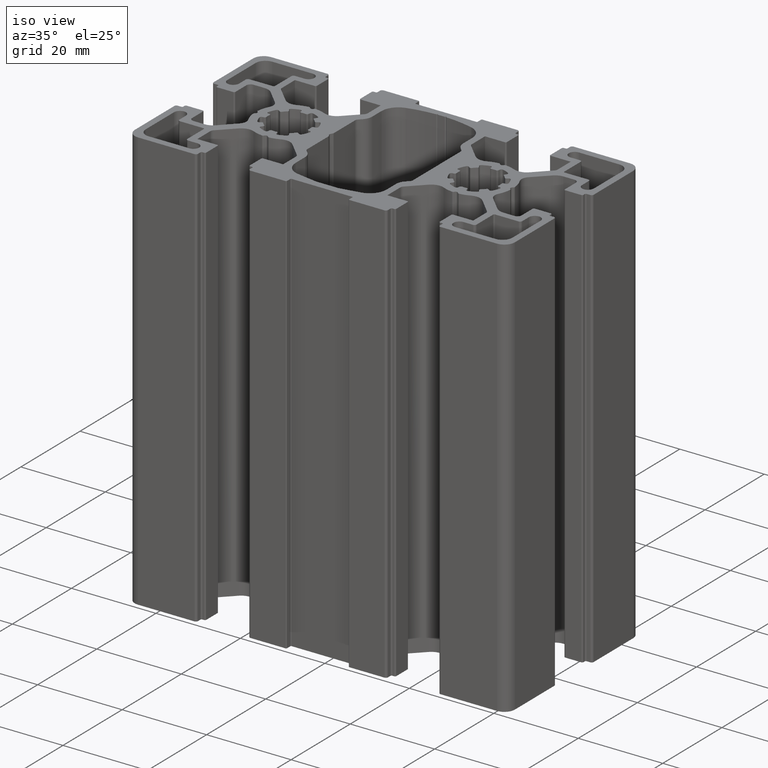
[diagram: clean part render]
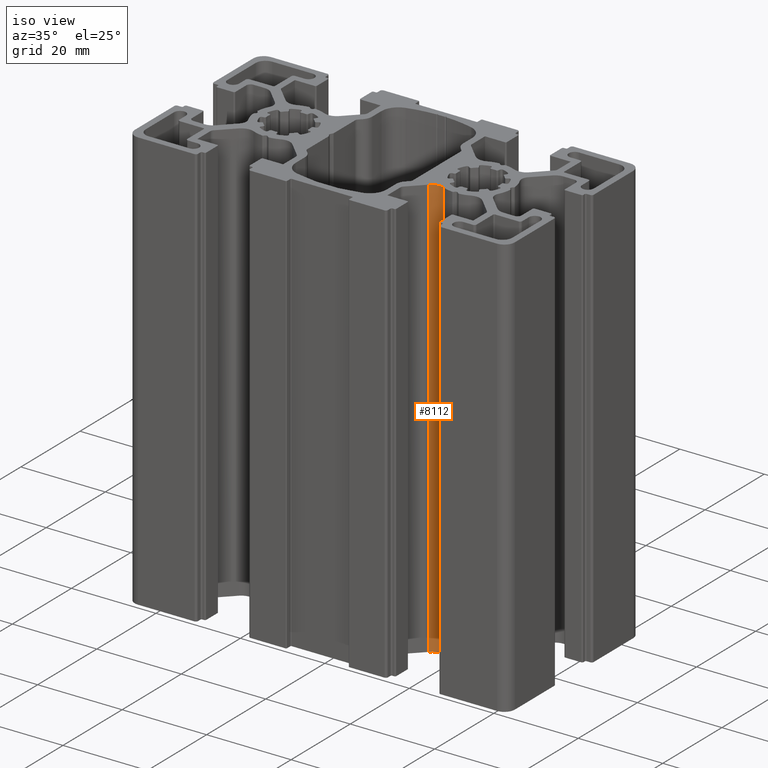
[diagram: same view with one face highlighted and labeled with its STEP entity id]
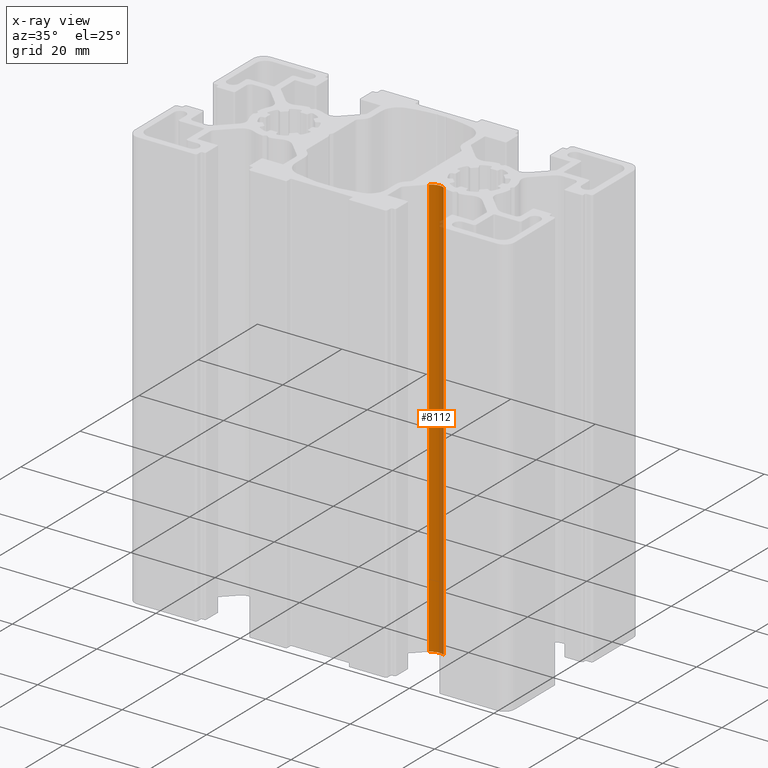
[diagram: x-ray of the same camera — body ghosted, the highlighted face saturated]
A machine part, iso view. The second image highlights one B-rep face of the part: STEP entity #8112.
The next image is the same camera in x-ray: the body ghosted, the highlighted face saturated — about 28% of this face is hidden behind the body in this view.
In plain terms, the highlighted cylindrical surface (edge-blend (fillet) strip) has radius 2.8 mm, axis along (0, 0, 1).
Its self-contained STEP definition (entity closure, byte-faithful):
#249=CIRCLE('',#8757,2.8);
#250=CIRCLE('',#8758,2.8);
#653=CYLINDRICAL_SURFACE('',#8756,2.8);
#977=FACE_OUTER_BOUND('',#1399,.T.);
#1399=EDGE_LOOP('',(#5958,#5959,#5960,#5961));
#1970=LINE('',#12982,#2716);
#1971=LINE('',#12988,#2717);
#2716=VECTOR('',#10401,100.);
#2717=VECTOR('',#10408,100.);
#3506=VERTEX_POINT('',#12979);
#3507=VERTEX_POINT('',#12981);
#3508=VERTEX_POINT('',#12985);
#3509=VERTEX_POINT('',#12987);
#4521=EDGE_CURVE('',#3507,#3506,#1970,.T.);
#4523=EDGE_CURVE('',#3508,#3506,#249,.T.);
#4524=EDGE_CURVE('',#3509,#3508,#1971,.T.);
#4525=EDGE_CURVE('',#3507,#3509,#250,.T.);
#5958=ORIENTED_EDGE('',*,*,#4523,.F.);
#5959=ORIENTED_EDGE('',*,*,#4524,.F.);
#5960=ORIENTED_EDGE('',*,*,#4525,.F.);
#5961=ORIENTED_EDGE('',*,*,#4521,.T.);
#8112=ADVANCED_FACE('',(#977),#653,.F.);
#8756=AXIS2_PLACEMENT_3D('',#12984,#10404,#10405);
#8757=AXIS2_PLACEMENT_3D('',#12986,#10406,#10407);
#8758=AXIS2_PLACEMENT_3D('',#12989,#10409,#10410);
#10401=DIRECTION('',(0.,0.,1.));
#10404=DIRECTION('center_axis',(0.,0.,1.));
#10405=DIRECTION('ref_axis',(0.404047669977856,0.914737929893292,0.));
#10406=DIRECTION('center_axis',(0.,0.,-1.));
#10407=DIRECTION('ref_axis',(0.404047669977856,0.914737929893292,0.));
#10408=DIRECTION('',(0.,0.,1.));
#10409=DIRECTION('center_axis',(0.,0.,1.));
#10410=DIRECTION('ref_axis',(0.404047669977856,0.914737929893292,0.));
#12979=CARTESIAN_POINT('',(19.2676185687117,-7.31790400243475,100.));
#12981=CARTESIAN_POINT('',(19.2676185687117,-7.31790400243475,0.));
#12982=CARTESIAN_POINT('',(19.2676185687117,-7.31790400243475,0.));
#12984=CARTESIAN_POINT('Origin',(18.1362850927737,-9.87917020613597,0.));
#12985=CARTESIAN_POINT('',(16.1563861054514,-7.89927121881362,100.));
#12986=CARTESIAN_POINT('Origin',(18.1362850927737,-9.87917020613597,100.));
#12987=CARTESIAN_POINT('',(16.1563861054514,-7.89927121881362,0.));
#12988=CARTESIAN_POINT('',(16.1563861054514,-7.89927121881362,0.));
#12989=CARTESIAN_POINT('Origin',(18.1362850927737,-9.87917020613597,0.));